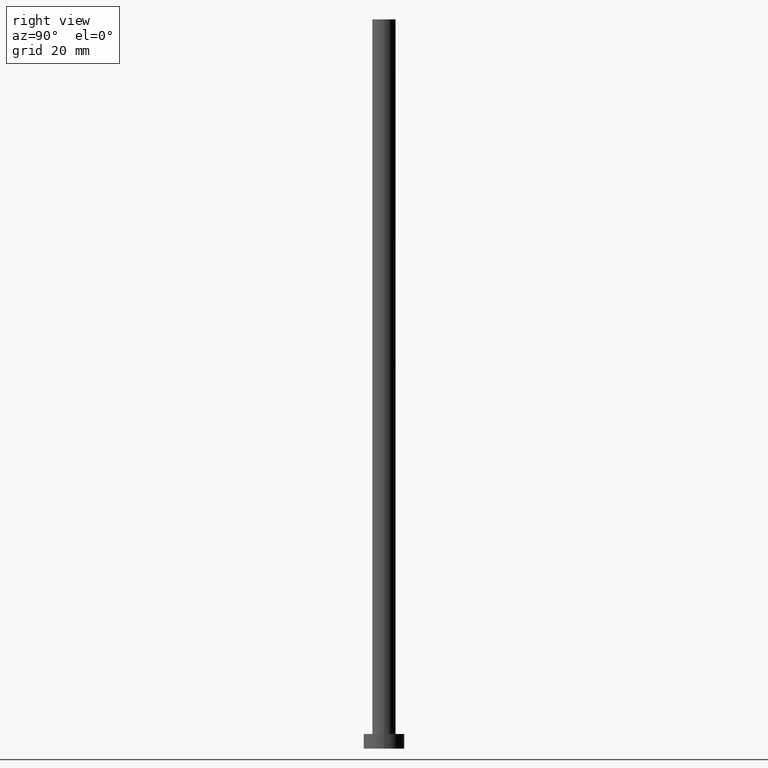
[diagram: clean part render]
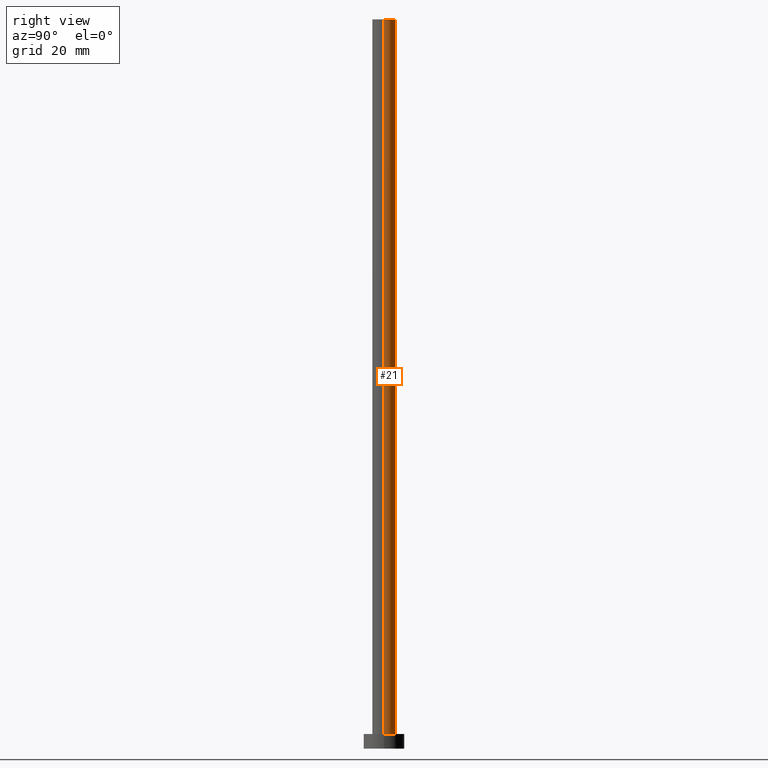
[diagram: same view with one face highlighted and labeled with its STEP entity id]
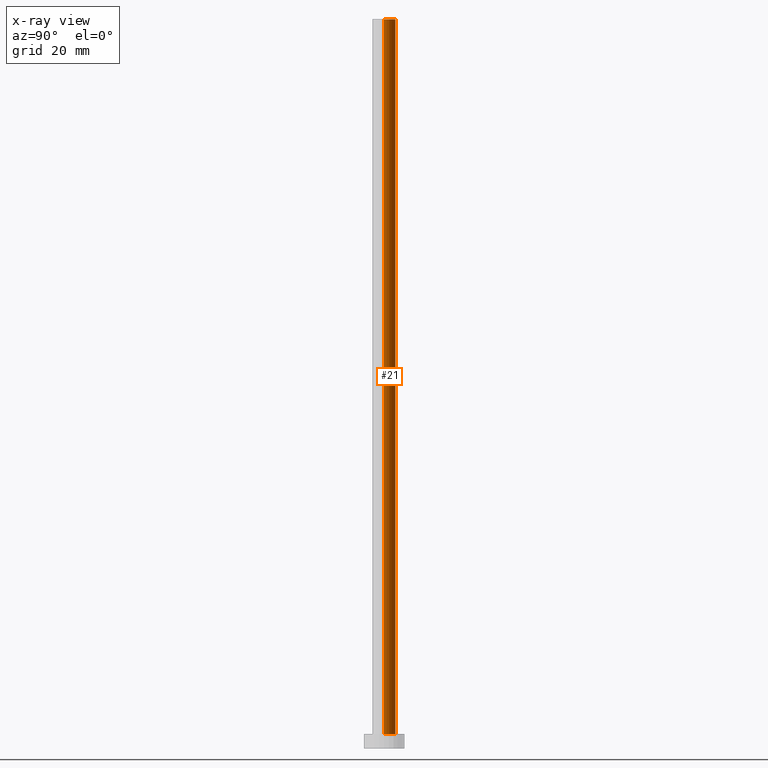
[diagram: x-ray of the same camera — body ghosted, the highlighted face saturated]
A machine part, right view. The second image highlights one B-rep face of the part: STEP entity #21.
The next image is the same camera in x-ray: the body ghosted, the highlighted face saturated — about 0% of this face is hidden behind the body in this view.
In plain terms, the highlighted cylindrical surface (edge-blend (fillet) strip) has radius 4 mm, axis along (-0, -0, -1).
Its self-contained STEP definition (entity closure, byte-faithful):
#7 = EDGE_CURVE ( 'NONE', #151, #180, #200, .T. ) ;
#10 = AXIS2_PLACEMENT_3D ( 'NONE', #136, #251, #158 ) ;
#21 = ADVANCED_FACE ( 'NONE', ( #252 ), #175, .T. ) ;
#28 = DIRECTION ( 'NONE',  ( 0.000000000000000000, 0.000000000000000000, 1.000000000000000000 ) ) ;
#30 = EDGE_CURVE ( 'NONE', #154, #151, #65, .T. ) ;
#33 = CARTESIAN_POINT ( 'NONE',  ( 4.000000000000000000, 4.898587196589412829E-16, 250.0000000000000000 ) ) ;
#34 = CARTESIAN_POINT ( 'NONE',  ( 0.000000000000000000, 0.000000000000000000, 250.0000000000000000 ) ) ;
#55 = CARTESIAN_POINT ( 'NONE',  ( -4.000000000000000000, 0.000000000000000000, 250.0000000000000000 ) ) ;
#56 = DIRECTION ( 'NONE',  ( 0.000000000000000000, 0.000000000000000000, 1.000000000000000000 ) ) ;
#59 = CARTESIAN_POINT ( 'NONE',  ( 0.000000000000000000, 0.000000000000000000, 5.000000000000000000 ) ) ;
#65 = LINE ( 'NONE', #137, #220 ) ;
#78 = AXIS2_PLACEMENT_3D ( 'NONE', #34, #56, #110 ) ;
#79 = DIRECTION ( 'NONE',  ( -0.000000000000000000, -0.000000000000000000, -1.000000000000000000 ) ) ;
#88 = CARTESIAN_POINT ( 'NONE',  ( 4.000000000000000000, 4.898587196589412829E-16, 5.000000000000000000 ) ) ;
#93 = ORIENTED_EDGE ( 'NONE', *, *, #7, .T. ) ;
#107 = DIRECTION ( 'NONE',  ( 1.000000000000000000, 0.000000000000000000, 0.000000000000000000 ) ) ;
#110 = DIRECTION ( 'NONE',  ( 1.000000000000000000, 0.000000000000000000, 0.000000000000000000 ) ) ;
#124 = AXIS2_PLACEMENT_3D ( 'NONE', #59, #28, #107 ) ;
#131 = DIRECTION ( 'NONE',  ( -0.000000000000000000, -0.000000000000000000, -1.000000000000000000 ) ) ;
#134 = ORIENTED_EDGE ( 'NONE', *, *, #193, .F. ) ;
#136 = CARTESIAN_POINT ( 'NONE',  ( 0.000000000000000000, 0.000000000000000000, 250.0000000000000000 ) ) ;
#137 = CARTESIAN_POINT ( 'NONE',  ( 4.000000000000000000, 4.898587196589412829E-16, 250.0000000000000000 ) ) ;
#148 = VECTOR ( 'NONE', #131, 1000.000000000000000 ) ;
#151 = VERTEX_POINT ( 'NONE', #88 ) ;
#154 = VERTEX_POINT ( 'NONE', #33 ) ;
#158 = DIRECTION ( 'NONE',  ( -1.000000000000000000, 0.000000000000000000, 0.000000000000000000 ) ) ;
#163 = EDGE_LOOP ( 'NONE', ( #198, #247, #93, #134 ) ) ;
#175 = CYLINDRICAL_SURFACE ( 'NONE', #10, 4.000000000000000000 ) ;
#176 = CIRCLE ( 'NONE', #78, 4.000000000000000000 ) ;
#180 = VERTEX_POINT ( 'NONE', #250 ) ;
#188 = LINE ( 'NONE', #55, #148 ) ;
#193 = EDGE_CURVE ( 'NONE', #202, #180, #188, .T. ) ;
#198 = ORIENTED_EDGE ( 'NONE', *, *, #240, .F. ) ;
#200 = CIRCLE ( 'NONE', #124, 4.000000000000000000 ) ;
#202 = VERTEX_POINT ( 'NONE', #242 ) ;
#220 = VECTOR ( 'NONE', #79, 1000.000000000000000 ) ;
#240 = EDGE_CURVE ( 'NONE', #154, #202, #176, .T. ) ;
#242 = CARTESIAN_POINT ( 'NONE',  ( -4.000000000000000000, 0.000000000000000000, 250.0000000000000000 ) ) ;
#247 = ORIENTED_EDGE ( 'NONE', *, *, #30, .T. ) ;
#250 = CARTESIAN_POINT ( 'NONE',  ( -4.000000000000000000, 0.000000000000000000, 5.000000000000000000 ) ) ;
#251 = DIRECTION ( 'NONE',  ( -0.000000000000000000, -0.000000000000000000, -1.000000000000000000 ) ) ;
#252 = FACE_OUTER_BOUND ( 'NONE', #163, .T. ) ;